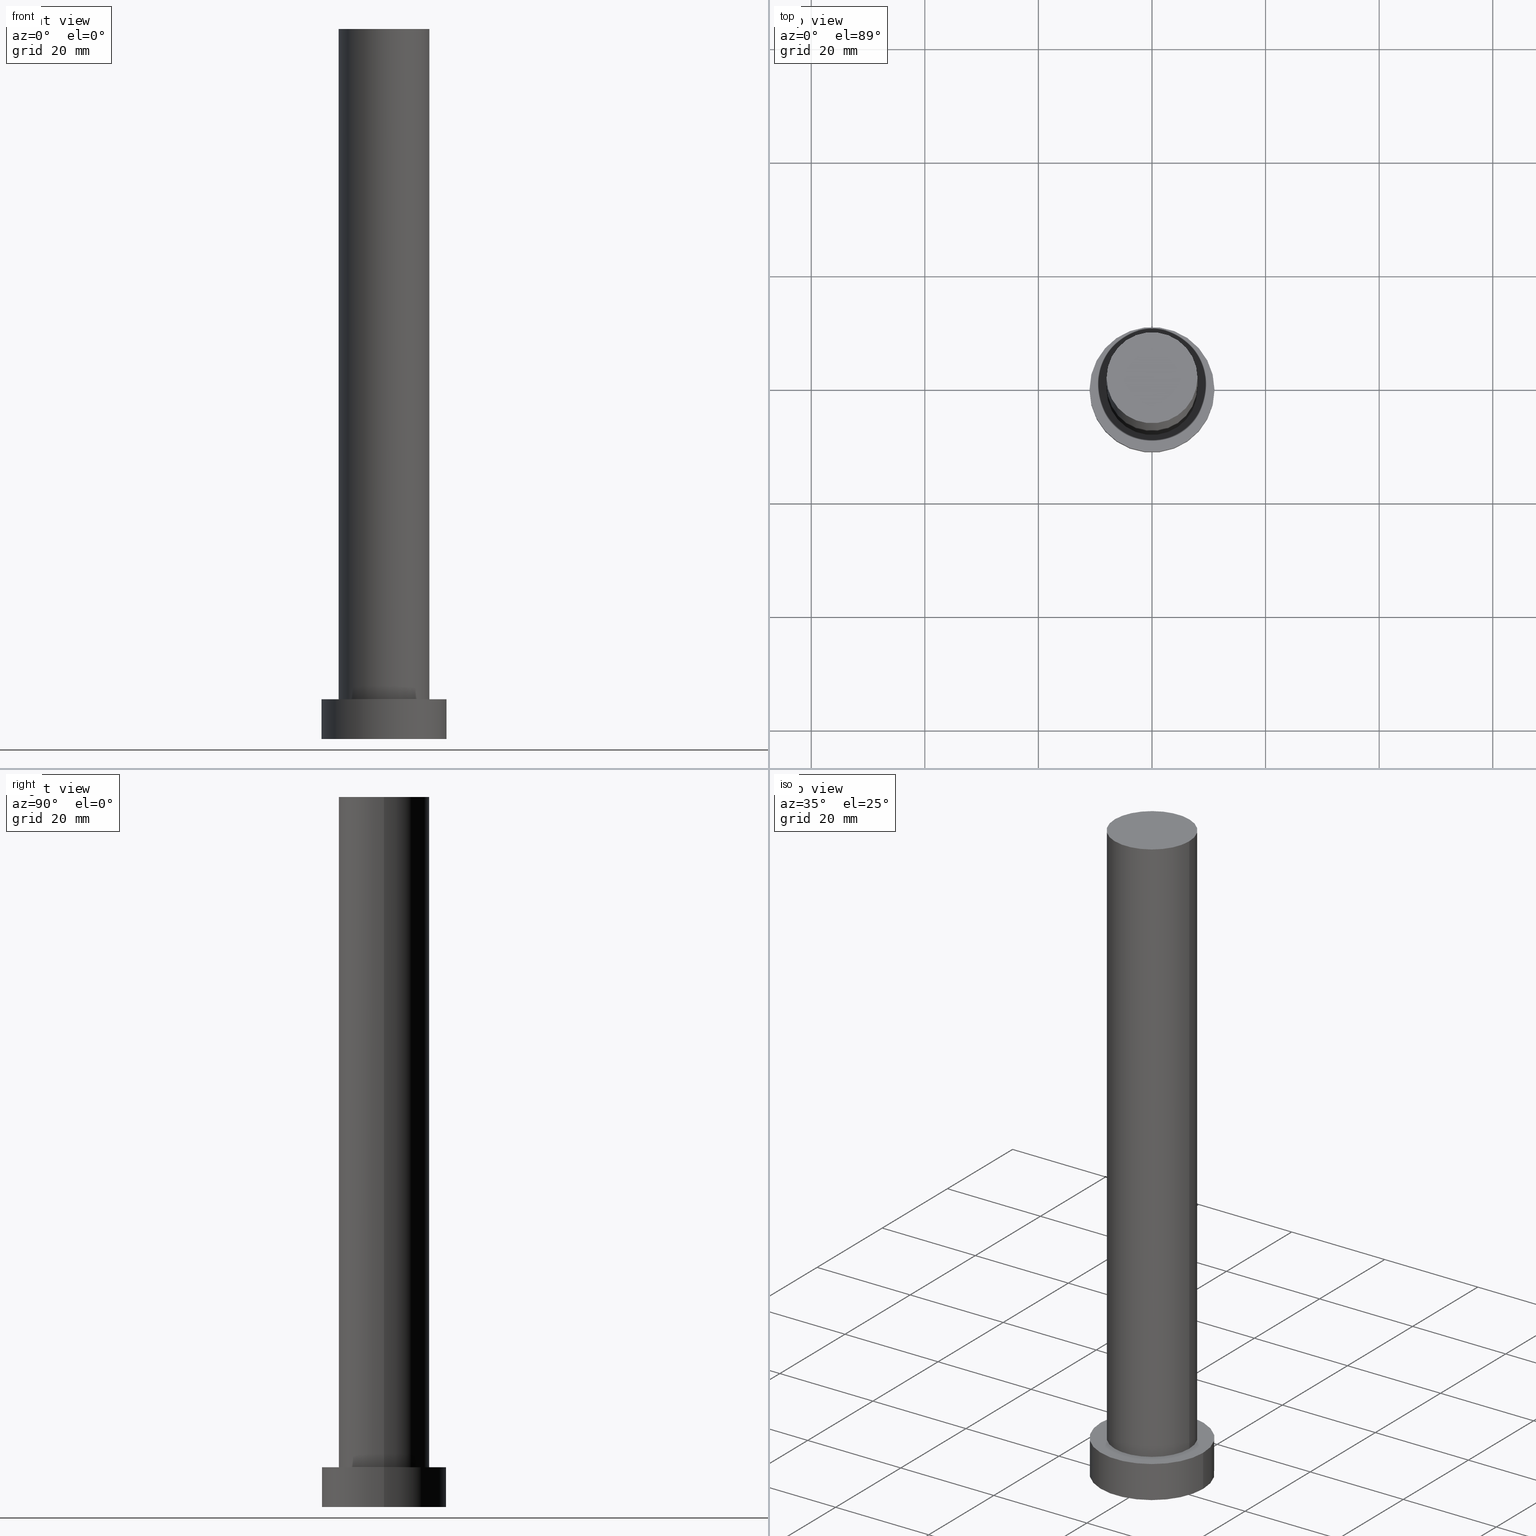
[diagram: canonical four-view strip — front | top / right | iso, engineering-drawing reading convention]
A machine part, canonical four-view strip (front | top / right | iso — engineering-drawing reading convention). The complete STEP part file that produces these views, byte-faithful:
ISO-10303-21;
HEADER;
FILE_DESCRIPTION (( 'STEP AP203' ),
    '1' );
FILE_NAME ('4963.STEP',
    '2023-02-13T08:53:22',
    ( '' ),
    ( '' ),
    'SwSTEP 2.0',
    'SolidWorks 2019',
    '' );
FILE_SCHEMA (( 'CONFIG_CONTROL_DESIGN' ));
ENDSEC;

DATA;
#1 = CIRCLE ( 'NONE', #61, 8.000000000000000000 ) ;
#2 = CALENDAR_DATE ( 2023, 13, 2 ) ;
#3 = FACE_OUTER_BOUND ( 'NONE', #67, .T. ) ;
#4 = ORIENTED_EDGE ( 'NONE', *, *, #161, .F. ) ;
#5 = PERSON_AND_ORGANIZATION ( #136, #64 ) ;
#6 = EDGE_CURVE ( 'NONE', #112, #69, #1, .T. ) ;
#7 = APPLICATION_PROTOCOL_DEFINITION ( 'international standard', 'config_control_design', 1994, #153 ) ;
#8 = DIRECTION ( 'NONE',  ( -1.000000000000000000, 0.000000000000000000, 0.000000000000000000 ) ) ;
#9 = ORIENTED_EDGE ( 'NONE', *, *, #221, .F. ) ;
#10 = DIRECTION ( 'NONE',  ( 1.000000000000000000, 0.000000000000000000, 0.000000000000000000 ) ) ;
#11 = EDGE_CURVE ( 'NONE', #150, #69, #231, .T. ) ;
#12 = DIRECTION ( 'NONE',  ( 1.000000000000000000, 0.000000000000000000, 0.000000000000000000 ) ) ;
#13 = DIRECTION ( 'NONE',  ( 1.000000000000000000, 0.000000000000000000, -0.000000000000000000 ) ) ;
#14 = LOCAL_TIME ( 9, 53, 22.00000000000000000, #188 ) ;
#15 = DIRECTION ( 'NONE',  ( 0.000000000000000000, 0.000000000000000000, 1.000000000000000000 ) ) ;
#16 = AXIS2_PLACEMENT_3D ( 'NONE', #192, #162, #10 ) ;
#17 = PRODUCT_RELATED_PRODUCT_CATEGORY ( 'detail', '', ( #82 ) ) ;
#18 = PRODUCT_DEFINITION_SHAPE ( 'NONE', 'NONE',  #26 ) ;
#19 = DATE_TIME_ROLE ( 'classification_date' ) ;
#20 = EDGE_CURVE ( 'NONE', #86, #245, #164, .T. ) ;
#21 = ORIENTED_EDGE ( 'NONE', *, *, #129, .F. ) ;
#22 = DIRECTION ( 'NONE',  ( 1.000000000000000000, 0.000000000000000000, 0.000000000000000000 ) ) ;
#23 = PLANE ( 'NONE',  #38 ) ;
#24 = APPROVAL_ROLE ( '' ) ;
#25 = LOCAL_TIME ( 9, 53, 22.00000000000000000, #43 ) ;
#26 = PRODUCT_DEFINITION ( 'NEZN�M�', '', #99, #107 ) ;
#27 = DIRECTION ( 'NONE',  ( 0.000000000000000000, 0.000000000000000000, 1.000000000000000000 ) ) ;
#28 = CARTESIAN_POINT ( 'NONE',  ( 0.000000000000000000, 0.000000000000000000, 125.0000000000000000 ) ) ;
#29 = LINE ( 'NONE', #98, #203 ) ;
#30 = PERSON_AND_ORGANIZATION_ROLE ( 'design_supplier' ) ;
#31 = EDGE_CURVE ( 'NONE', #69, #112, #240, .T. ) ;
#32 = DIRECTION ( 'NONE',  ( 1.000000000000000000, 0.000000000000000000, 0.000000000000000000 ) ) ;
#33 = CC_DESIGN_PERSON_AND_ORGANIZATION_ASSIGNMENT ( #60, #222, ( #154 ) ) ;
#34 = DATE_AND_TIME ( #79, #254 ) ;
#35 = EDGE_CURVE ( 'NONE', #44, #186, #118, .T. ) ;
#36 = APPROVAL_PERSON_ORGANIZATION ( #237, #181, #225 ) ;
#37 = DATE_AND_TIME ( #59, #233 ) ;
#38 = AXIS2_PLACEMENT_3D ( 'NONE', #191, #94, #160 ) ;
#39 = CIRCLE ( 'NONE', #55, 8.000000000000000000 ) ;
#40 = SHAPE_DEFINITION_REPRESENTATION ( #18, #83 ) ;
#41 = DIRECTION ( 'NONE',  ( -1.000000000000000000, 0.000000000000000000, 0.000000000000000000 ) ) ;
#42 = CC_DESIGN_DATE_AND_TIME_ASSIGNMENT ( #80, #19, ( #154 ) ) ;
#43 = COORDINATED_UNIVERSAL_TIME_OFFSET ( 1, 0, .AHEAD. ) ;
#44 = VERTEX_POINT ( 'NONE', #113 ) ;
#45 = CALENDAR_DATE ( 2023, 13, 2 ) ;
#46 = ORIENTED_EDGE ( 'NONE', *, *, #35, .F. ) ;
#47 = ORIENTED_EDGE ( 'NONE', *, *, #20, .T. ) ;
#48 = ADVANCED_FACE ( 'NONE', ( #190 ), #23, .F. ) ;
#49 = ORIENTED_EDGE ( 'NONE', *, *, #74, .F. ) ;
#50 = CARTESIAN_POINT ( 'NONE',  ( 11.00000000000000000, 1.347111479062088405E-15, 0.000000000000000000 ) ) ;
#51 = AXIS2_PLACEMENT_3D ( 'NONE', #52, #219, #13 ) ;
#52 = CARTESIAN_POINT ( 'NONE',  ( 0.000000000000000000, 0.000000000000000000, 7.000000000000000000 ) ) ;
#53 = LINE ( 'NONE', #73, #201 ) ;
#54 = FACE_OUTER_BOUND ( 'NONE', #189, .T. ) ;
#55 = AXIS2_PLACEMENT_3D ( 'NONE', #28, #119, #12 ) ;
#56 = APPLICATION_PROTOCOL_DEFINITION ( 'international standard', 'config_control_design', 1994, #130 ) ;
#57 = DIRECTION ( 'NONE',  ( 1.000000000000000000, 0.000000000000000000, 0.000000000000000000 ) ) ;
#58 = ORIENTED_EDGE ( 'NONE', *, *, #11, .T. ) ;
#59 = CALENDAR_DATE ( 2023, 13, 2 ) ;
#60 = PERSON_AND_ORGANIZATION ( #136, #64 ) ;
#61 = AXIS2_PLACEMENT_3D ( 'NONE', #247, #27, #144 ) ;
#62 = ADVANCED_FACE ( 'NONE', ( #194 ), #75, .T. ) ;
#63 = MANIFOLD_SOLID_BREP ( 'P�idat vysunut�m3', #146 ) ;
#64 = ORGANIZATION ( 'NEUR�EN�', 'NEUR�EN�', '' ) ;
#65 = DIRECTION ( 'NONE',  ( 1.000000000000000000, 0.000000000000000000, 0.000000000000000000 ) ) ;
#66 = AXIS2_PLACEMENT_3D ( 'NONE', #137, #89, #41 ) ;
#67 = EDGE_LOOP ( 'NONE', ( #88, #246 ) ) ;
#68 = CARTESIAN_POINT ( 'NONE',  ( 0.000000000000000000, 0.000000000000000000, 7.000000000000000000 ) ) ;
#69 = VERTEX_POINT ( 'NONE', #236 ) ;
#70 =( NAMED_UNIT ( * ) SI_UNIT ( $, .STERADIAN. ) SOLID_ANGLE_UNIT ( ) );
#71 = EDGE_LOOP ( 'NONE', ( #250, #155 ) ) ;
#72 = CARTESIAN_POINT ( 'NONE',  ( 8.000000000000000000, 9.797174393178825657E-16, 125.0000000000000000 ) ) ;
#73 = CARTESIAN_POINT ( 'NONE',  ( 11.00000000000000000, 1.347111479062088405E-15, 7.000000000000000000 ) ) ;
#74 = EDGE_CURVE ( 'NONE', #186, #86, #53, .T. ) ;
#75 = PLANE ( 'NONE',  #252 ) ;
#76 = CARTESIAN_POINT ( 'NONE',  ( -8.000000000000000000, 0.000000000000000000, 7.000000000000000000 ) ) ;
#77 = SECURITY_CLASSIFICATION_LEVEL ( 'unclassified' ) ;
#78 = ADVANCED_FACE ( 'NONE', ( #54 ), #217, .T. ) ;
#79 = CALENDAR_DATE ( 2023, 13, 2 ) ;
#80 = DATE_AND_TIME ( #199, #128 ) ;
#81 = AXIS2_PLACEMENT_3D ( 'NONE', #96, #174, #152 ) ;
#82 = PRODUCT ( '4963', '4963', '', ( #97 ) ) ;
#83 = ADVANCED_BREP_SHAPE_REPRESENTATION ( '4963', ( #63, #239 ), #200 ) ;
#84 = AXIS2_PLACEMENT_3D ( 'NONE', #205, #211, #8 ) ;
#85 = PERSON_AND_ORGANIZATION_ROLE ( 'creator' ) ;
#86 = VERTEX_POINT ( 'NONE', #50 ) ;
#87 = LINE ( 'NONE', #140, #180 ) ;
#88 = ORIENTED_EDGE ( 'NONE', *, *, #35, .T. ) ;
#89 = DIRECTION ( 'NONE',  ( -0.000000000000000000, -0.000000000000000000, -1.000000000000000000 ) ) ;
#90 = EDGE_LOOP ( 'NONE', ( #49, #46, #208, #242 ) ) ;
#91 = CC_DESIGN_SECURITY_CLASSIFICATION ( #154, ( #99 ) ) ;
#92 = PERSON_AND_ORGANIZATION ( #136, #64 ) ;
#93 = FACE_BOUND ( 'NONE', #71, .T. ) ;
#94 = DIRECTION ( 'NONE',  ( 0.000000000000000000, 0.000000000000000000, 1.000000000000000000 ) ) ;
#95 =( NAMED_UNIT ( * ) PLANE_ANGLE_UNIT ( ) SI_UNIT ( $, .RADIAN. ) );
#96 = CARTESIAN_POINT ( 'NONE',  ( 0.000000000000000000, 0.000000000000000000, 7.000000000000000000 ) ) ;
#97 = MECHANICAL_CONTEXT ( 'NONE', #130, 'mechanical' ) ;
#98 = CARTESIAN_POINT ( 'NONE',  ( -8.000000000000000000, 0.000000000000000000, 125.0000000000000000 ) ) ;
#99 = PRODUCT_DEFINITION_FORMATION_WITH_SPECIFIED_SOURCE ( 'LIBOVOLN�', '', #82, .NOT_KNOWN. ) ;
#100 = CC_DESIGN_PERSON_AND_ORGANIZATION_ASSIGNMENT ( #230, #30, ( #99 ) ) ;
#101 = CARTESIAN_POINT ( 'NONE',  ( 0.000000000000000000, 0.000000000000000000, 0.000000000000000000 ) ) ;
#102 = FACE_OUTER_BOUND ( 'NONE', #109, .T. ) ;
#103 = COORDINATED_UNIVERSAL_TIME_OFFSET ( 1, 0, .AHEAD. ) ;
#104 = ADVANCED_FACE ( 'NONE', ( #102 ), #166, .T. ) ;
#105 = DATE_TIME_ROLE ( 'creation_date' ) ;
#106 = APPROVAL_STATUS ( 'not_yet_approved' ) ;
#107 = DESIGN_CONTEXT ( 'detailed design', #153, 'design' ) ;
#108 = CC_DESIGN_DATE_AND_TIME_ASSIGNMENT ( #34, #105, ( #26 ) ) ;
#109 = EDGE_LOOP ( 'NONE', ( #179, #4, #157, #251 ) ) ;
#110 = CC_DESIGN_PERSON_AND_ORGANIZATION_ASSIGNMENT ( #176, #142, ( #82 ) ) ;
#111 = VECTOR ( 'NONE', #215, 1000.000000000000000 ) ;
#112 = VERTEX_POINT ( 'NONE', #76 ) ;
#113 = CARTESIAN_POINT ( 'NONE',  ( -11.00000000000000000, 0.000000000000000000, 7.000000000000000000 ) ) ;
#114 = APPROVAL ( #241, 'NEUR�EN�' ) ;
#115 = CARTESIAN_POINT ( 'NONE',  ( -8.000000000000000000, 0.000000000000000000, 125.0000000000000000 ) ) ;
#116 = ORIENTED_EDGE ( 'NONE', *, *, #125, .F. ) ;
#117 = CARTESIAN_POINT ( 'NONE',  ( -11.00000000000000000, 0.000000000000000000, 0.000000000000000000 ) ) ;
#118 = CIRCLE ( 'NONE', #197, 11.00000000000000000 ) ;
#119 = DIRECTION ( 'NONE',  ( 0.000000000000000000, 0.000000000000000000, 1.000000000000000000 ) ) ;
#120 = CARTESIAN_POINT ( 'NONE',  ( 11.00000000000000000, 1.347111479062088405E-15, 7.000000000000000000 ) ) ;
#121 =( LENGTH_UNIT ( ) NAMED_UNIT ( * ) SI_UNIT ( .MILLI., .METRE. ) );
#122 = AXIS2_PLACEMENT_3D ( 'NONE', #224, #169, #65 ) ;
#123 = CC_DESIGN_APPROVAL ( #184, ( #26 ) ) ;
#124 = DIRECTION ( 'NONE',  ( -1.000000000000000000, 0.000000000000000000, 0.000000000000000000 ) ) ;
#125 = EDGE_CURVE ( 'NONE', #186, #44, #182, .T. ) ;
#126 = ORIENTED_EDGE ( 'NONE', *, *, #161, .T. ) ;
#127 = COORDINATED_UNIVERSAL_TIME_OFFSET ( 1, 0, .AHEAD. ) ;
#128 = LOCAL_TIME ( 9, 53, 22.00000000000000000, #127 ) ;
#129 = EDGE_CURVE ( 'NONE', #245, #86, #139, .T. ) ;
#130 = APPLICATION_CONTEXT ( 'configuration controlled 3d designs of mechanical parts and assemblies' ) ;
#131 = APPROVAL_DATE_TIME ( #37, #184 ) ;
#132 = DATE_AND_TIME ( #45, #14 ) ;
#133 = DATE_AND_TIME ( #2, #25 ) ;
#134 = CYLINDRICAL_SURFACE ( 'NONE', #66, 11.00000000000000000 ) ;
#135 = APPROVAL_PERSON_ORGANIZATION ( #92, #184, #24 ) ;
#136 = PERSON ( 'NEUR�EN�', 'NEUR�EN�', 'NEUR�EN�', ('NEUR�EN�'), ('NEUR�EN�'), ('NEUR�EN�') ) ;
#137 = CARTESIAN_POINT ( 'NONE',  ( 0.000000000000000000, 0.000000000000000000, 7.000000000000000000 ) ) ;
#138 = ORIENTED_EDGE ( 'NONE', *, *, #74, .T. ) ;
#139 = CIRCLE ( 'NONE', #218, 11.00000000000000000 ) ;
#140 = CARTESIAN_POINT ( 'NONE',  ( -11.00000000000000000, 0.000000000000000000, 7.000000000000000000 ) ) ;
#141 = EDGE_LOOP ( 'NONE', ( #126, #143 ) ) ;
#142 = PERSON_AND_ORGANIZATION_ROLE ( 'design_owner' ) ;
#143 = ORIENTED_EDGE ( 'NONE', *, *, #195, .T. ) ;
#144 = DIRECTION ( 'NONE',  ( 1.000000000000000000, 0.000000000000000000, 0.000000000000000000 ) ) ;
#145 = CARTESIAN_POINT ( 'NONE',  ( 8.000000000000000000, 9.797174393178825657E-16, 125.0000000000000000 ) ) ;
#146 = CLOSED_SHELL ( 'NONE', ( #78, #202, #227, #238, #48, #104, #62 ) ) ;
#147 = DIRECTION ( 'NONE',  ( -1.000000000000000000, 0.000000000000000000, 0.000000000000000000 ) ) ;
#148 = CARTESIAN_POINT ( 'NONE',  ( 0.000000000000000000, 0.000000000000000000, 0.000000000000000000 ) ) ;
#149 = CIRCLE ( 'NONE', #122, 8.000000000000000000 ) ;
#150 = VERTEX_POINT ( 'NONE', #145 ) ;
#151 = AXIS2_PLACEMENT_3D ( 'NONE', #232, #163, #147 ) ;
#152 = DIRECTION ( 'NONE',  ( 1.000000000000000000, 0.000000000000000000, 0.000000000000000000 ) ) ;
#153 = APPLICATION_CONTEXT ( 'configuration controlled 3d designs of mechanical parts and assemblies' ) ;
#154 = SECURITY_CLASSIFICATION ( '', '', #77 ) ;
#155 = ORIENTED_EDGE ( 'NONE', *, *, #31, .F. ) ;
#156 = DIRECTION ( 'NONE',  ( -0.000000000000000000, -0.000000000000000000, -1.000000000000000000 ) ) ;
#157 = ORIENTED_EDGE ( 'NONE', *, *, #171, .T. ) ;
#158 = ORIENTED_EDGE ( 'NONE', *, *, #171, .F. ) ;
#159 = APPROVAL_STATUS ( 'not_yet_approved' ) ;
#160 = DIRECTION ( 'NONE',  ( 1.000000000000000000, 0.000000000000000000, -0.000000000000000000 ) ) ;
#161 = EDGE_CURVE ( 'NONE', #244, #150, #39, .T. ) ;
#162 = DIRECTION ( 'NONE',  ( 0.000000000000000000, 0.000000000000000000, 1.000000000000000000 ) ) ;
#163 = DIRECTION ( 'NONE',  ( -0.000000000000000000, -0.000000000000000000, -1.000000000000000000 ) ) ;
#164 = CIRCLE ( 'NONE', #16, 11.00000000000000000 ) ;
#165 = DIRECTION ( 'NONE',  ( 0.000000000000000000, 0.000000000000000000, 1.000000000000000000 ) ) ;
#166 = CYLINDRICAL_SURFACE ( 'NONE', #210, 8.000000000000000000 ) ;
#167 = DIRECTION ( 'NONE',  ( 1.000000000000000000, 0.000000000000000000, -0.000000000000000000 ) ) ;
#168 = CC_DESIGN_APPROVAL ( #181, ( #99 ) ) ;
#169 = DIRECTION ( 'NONE',  ( 0.000000000000000000, 0.000000000000000000, 1.000000000000000000 ) ) ;
#170 = APPROVAL_ROLE ( '' ) ;
#171 = EDGE_CURVE ( 'NONE', #244, #112, #29, .T. ) ;
#172 = FACE_OUTER_BOUND ( 'NONE', #206, .T. ) ;
#173 = ORIENTED_EDGE ( 'NONE', *, *, #31, .T. ) ;
#174 = DIRECTION ( 'NONE',  ( 0.000000000000000000, 0.000000000000000000, 1.000000000000000000 ) ) ;
#175 = DIRECTION ( 'NONE',  ( -0.000000000000000000, -0.000000000000000000, -1.000000000000000000 ) ) ;
#176 = PERSON_AND_ORGANIZATION ( #136, #64 ) ;
#177 = DIRECTION ( 'NONE',  ( -0.000000000000000000, -0.000000000000000000, -1.000000000000000000 ) ) ;
#178 = AXIS2_PLACEMENT_3D ( 'NONE', #235, #15, #57 ) ;
#179 = ORIENTED_EDGE ( 'NONE', *, *, #11, .F. ) ;
#180 = VECTOR ( 'NONE', #156, 1000.000000000000000 ) ;
#181 = APPROVAL ( #106, 'NEUR�EN�' ) ;
#182 = CIRCLE ( 'NONE', #178, 11.00000000000000000 ) ;
#183 = PERSON_AND_ORGANIZATION ( #136, #64 ) ;
#184 = APPROVAL ( #159, 'NEUR�EN�' ) ;
#185 = APPROVAL_DATE_TIME ( #132, #181 ) ;
#186 = VERTEX_POINT ( 'NONE', #120 ) ;
#187 = APPROVAL_PERSON_ORGANIZATION ( #5, #114, #170 ) ;
#188 = COORDINATED_UNIVERSAL_TIME_OFFSET ( 1, 0, .AHEAD. ) ;
#189 = EDGE_LOOP ( 'NONE', ( #228, #58, #173, #158 ) ) ;
#190 = FACE_OUTER_BOUND ( 'NONE', #243, .T. ) ;
#191 = CARTESIAN_POINT ( 'NONE',  ( 0.000000000000000000, 0.000000000000000000, 0.000000000000000000 ) ) ;
#192 = CARTESIAN_POINT ( 'NONE',  ( 0.000000000000000000, 0.000000000000000000, 0.000000000000000000 ) ) ;
#193 = CARTESIAN_POINT ( 'NONE',  ( 0.000000000000000000, 0.000000000000000000, 125.0000000000000000 ) ) ;
#194 = FACE_OUTER_BOUND ( 'NONE', #141, .T. ) ;
#195 = EDGE_CURVE ( 'NONE', #150, #244, #149, .T. ) ;
#196 = DIRECTION ( 'NONE',  ( 0.000000000000000000, 0.000000000000000000, 1.000000000000000000 ) ) ;
#197 = AXIS2_PLACEMENT_3D ( 'NONE', #68, #209, #22 ) ;
#198 = CC_DESIGN_PERSON_AND_ORGANIZATION_ASSIGNMENT ( #183, #253, ( #26 ) ) ;
#199 = CALENDAR_DATE ( 2023, 13, 2 ) ;
#200 =( GEOMETRIC_REPRESENTATION_CONTEXT ( 3 ) GLOBAL_UNCERTAINTY_ASSIGNED_CONTEXT ( ( #204 ) ) GLOBAL_UNIT_ASSIGNED_CONTEXT ( ( #121, #95, #70 ) ) REPRESENTATION_CONTEXT ( 'NONE', 'WORKASPACE' ) );
#201 = VECTOR ( 'NONE', #175, 1000.000000000000000 ) ;
#202 = ADVANCED_FACE ( 'NONE', ( #172 ), #134, .T. ) ;
#203 = VECTOR ( 'NONE', #177, 1000.000000000000000 ) ;
#204 = UNCERTAINTY_MEASURE_WITH_UNIT (LENGTH_MEASURE( 1.000000000000000082E-05 ), #121, 'distance_accuracy_value', 'NONE');
#205 = CARTESIAN_POINT ( 'NONE',  ( 0.000000000000000000, 0.000000000000000000, 7.000000000000000000 ) ) ;
#206 = EDGE_LOOP ( 'NONE', ( #116, #138, #47, #9 ) ) ;
#207 = FACE_OUTER_BOUND ( 'NONE', #90, .T. ) ;
#208 = ORIENTED_EDGE ( 'NONE', *, *, #221, .T. ) ;
#209 = DIRECTION ( 'NONE',  ( 0.000000000000000000, 0.000000000000000000, 1.000000000000000000 ) ) ;
#210 = AXIS2_PLACEMENT_3D ( 'NONE', #220, #216, #124 ) ;
#211 = DIRECTION ( 'NONE',  ( -0.000000000000000000, -0.000000000000000000, -1.000000000000000000 ) ) ;
#212 = COORDINATED_UNIVERSAL_TIME_OFFSET ( 1, 0, .AHEAD. ) ;
#213 = ORIENTED_EDGE ( 'NONE', *, *, #20, .F. ) ;
#214 = CC_DESIGN_PERSON_AND_ORGANIZATION_ASSIGNMENT ( #255, #85, ( #99 ) ) ;
#215 = DIRECTION ( 'NONE',  ( -0.000000000000000000, -0.000000000000000000, -1.000000000000000000 ) ) ;
#216 = DIRECTION ( 'NONE',  ( -0.000000000000000000, -0.000000000000000000, -1.000000000000000000 ) ) ;
#217 = CYLINDRICAL_SURFACE ( 'NONE', #151, 8.000000000000000000 ) ;
#218 = AXIS2_PLACEMENT_3D ( 'NONE', #148, #249, #32 ) ;
#219 = DIRECTION ( 'NONE',  ( 0.000000000000000000, 0.000000000000000000, 1.000000000000000000 ) ) ;
#220 = CARTESIAN_POINT ( 'NONE',  ( 0.000000000000000000, 0.000000000000000000, 125.0000000000000000 ) ) ;
#221 = EDGE_CURVE ( 'NONE', #44, #245, #87, .T. ) ;
#222 = PERSON_AND_ORGANIZATION_ROLE ( 'classification_officer' ) ;
#223 = CC_DESIGN_APPROVAL ( #114, ( #154 ) ) ;
#224 = CARTESIAN_POINT ( 'NONE',  ( 0.000000000000000000, 0.000000000000000000, 125.0000000000000000 ) ) ;
#225 = APPROVAL_ROLE ( '' ) ;
#226 = APPROVAL_DATE_TIME ( #133, #114 ) ;
#227 = ADVANCED_FACE ( 'NONE', ( #207 ), #229, .T. ) ;
#228 = ORIENTED_EDGE ( 'NONE', *, *, #195, .F. ) ;
#229 = CYLINDRICAL_SURFACE ( 'NONE', #84, 11.00000000000000000 ) ;
#230 = PERSON_AND_ORGANIZATION ( #136, #64 ) ;
#231 = LINE ( 'NONE', #72, #111 ) ;
#232 = CARTESIAN_POINT ( 'NONE',  ( 0.000000000000000000, 0.000000000000000000, 125.0000000000000000 ) ) ;
#233 = LOCAL_TIME ( 9, 53, 22.00000000000000000, #212 ) ;
#234 = DIRECTION ( 'NONE',  ( 1.000000000000000000, 0.000000000000000000, 0.000000000000000000 ) ) ;
#235 = CARTESIAN_POINT ( 'NONE',  ( 0.000000000000000000, 0.000000000000000000, 7.000000000000000000 ) ) ;
#236 = CARTESIAN_POINT ( 'NONE',  ( 8.000000000000000000, 9.797174393178825657E-16, 7.000000000000000000 ) ) ;
#237 = PERSON_AND_ORGANIZATION ( #136, #64 ) ;
#238 = ADVANCED_FACE ( 'NONE', ( #93, #3 ), #248, .T. ) ;
#239 = AXIS2_PLACEMENT_3D ( 'NONE', #101, #165, #234 ) ;
#240 = CIRCLE ( 'NONE', #81, 8.000000000000000000 ) ;
#241 = APPROVAL_STATUS ( 'not_yet_approved' ) ;
#242 = ORIENTED_EDGE ( 'NONE', *, *, #129, .T. ) ;
#243 = EDGE_LOOP ( 'NONE', ( #21, #213 ) ) ;
#244 = VERTEX_POINT ( 'NONE', #115 ) ;
#245 = VERTEX_POINT ( 'NONE', #117 ) ;
#246 = ORIENTED_EDGE ( 'NONE', *, *, #125, .T. ) ;
#247 = CARTESIAN_POINT ( 'NONE',  ( 0.000000000000000000, 0.000000000000000000, 7.000000000000000000 ) ) ;
#248 = PLANE ( 'NONE',  #51 ) ;
#249 = DIRECTION ( 'NONE',  ( 0.000000000000000000, 0.000000000000000000, 1.000000000000000000 ) ) ;
#250 = ORIENTED_EDGE ( 'NONE', *, *, #6, .F. ) ;
#251 = ORIENTED_EDGE ( 'NONE', *, *, #6, .T. ) ;
#252 = AXIS2_PLACEMENT_3D ( 'NONE', #193, #196, #167 ) ;
#253 = PERSON_AND_ORGANIZATION_ROLE ( 'creator' ) ;
#254 = LOCAL_TIME ( 9, 53, 22.00000000000000000, #103 ) ;
#255 = PERSON_AND_ORGANIZATION ( #136, #64 ) ;
ENDSEC;
END-ISO-10303-21;
